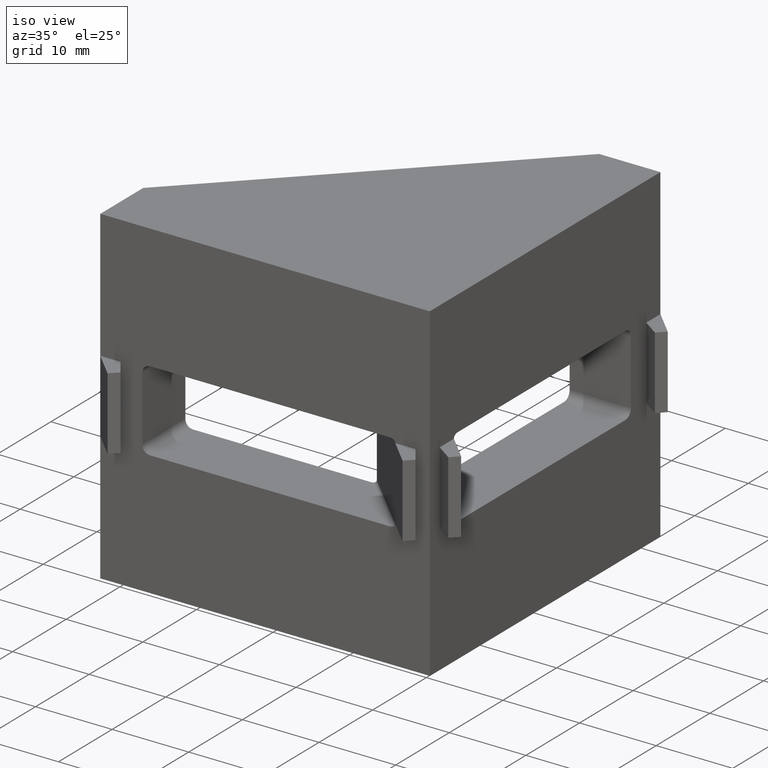
[diagram: clean part render]
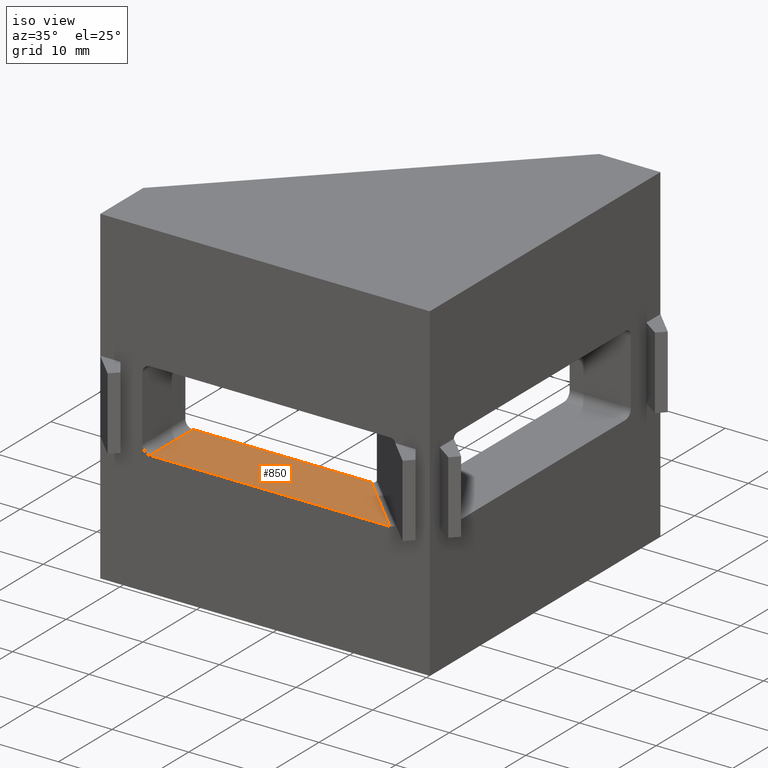
[diagram: same view with one face highlighted and labeled with its STEP entity id]
A machine part, iso view. The second image highlights one B-rep face of the part: STEP entity #850.
In plain terms, the highlighted planar face has unit normal (-0, -0, -1).
Its self-contained STEP definition (entity closure, byte-faithful):
#52=PLANE('',#912);
#94=FACE_OUTER_BOUND('',#143,.T.);
#143=EDGE_LOOP('',(#729,#730,#731,#732));
#178=LINE('',#1216,#282);
#228=LINE('',#1317,#332);
#240=LINE('',#1347,#344);
#242=LINE('',#1354,#346);
#282=VECTOR('',#980,11.3137084989848);
#332=VECTOR('',#1070,31.2928932188135);
#344=VECTOR('',#1094,23.2928932188134);
#346=VECTOR('',#1102,8.);
#395=VERTEX_POINT('',#1209);
#398=VERTEX_POINT('',#1214);
#429=VERTEX_POINT('',#1316);
#441=VERTEX_POINT('',#1346);
#478=EDGE_CURVE('',#398,#395,#178,.T.);
#528=EDGE_CURVE('',#395,#429,#228,.T.);
#544=EDGE_CURVE('',#441,#398,#240,.T.);
#548=EDGE_CURVE('',#441,#429,#242,.T.);
#729=ORIENTED_EDGE('',*,*,#478,.F.);
#730=ORIENTED_EDGE('',*,*,#544,.F.);
#731=ORIENTED_EDGE('',*,*,#548,.T.);
#732=ORIENTED_EDGE('',*,*,#528,.F.);
#850=ADVANCED_FACE('',(#94),#52,.F.);
#912=AXIS2_PLACEMENT_3D('',#1353,#1100,#1101);
#980=DIRECTION('',(0.707106781186548,-0.707106781186548,-4.48597845338222E-17));
#1070=DIRECTION('',(-1.,0.,0.));
#1094=DIRECTION('',(1.,3.1720657846433E-16,0.));
#1100=DIRECTION('center_axis',(-6.34413156928661E-17,-1.9656002621786E-32,
-1.));
#1101=DIRECTION('ref_axis',(1.,3.5527136788005E-16,-8.88178419700125E-17));
#1102=DIRECTION('',(3.09829681290741E-16,-1.,0.));
#1209=CARTESIAN_POINT('',(16.2928932188135,-21.5,-5.25));
#1214=CARTESIAN_POINT('',(8.29289321881346,-13.5,-5.25));
#1216=CARTESIAN_POINT('',(6.64644660940674,-11.8535533905933,-5.25));
#1316=CARTESIAN_POINT('',(-15.,-21.5,-5.25));
#1317=CARTESIAN_POINT('',(-4.8357864376269,-21.5,-5.25));
#1346=CARTESIAN_POINT('',(-15.,-13.5,-5.25));
#1347=CARTESIAN_POINT('',(12.6642135623731,-13.5,-5.25));
#1353=CARTESIAN_POINT('Origin',(-15.,-13.5,-5.25));
#1354=CARTESIAN_POINT('',(-15.,-13.5,-5.25));